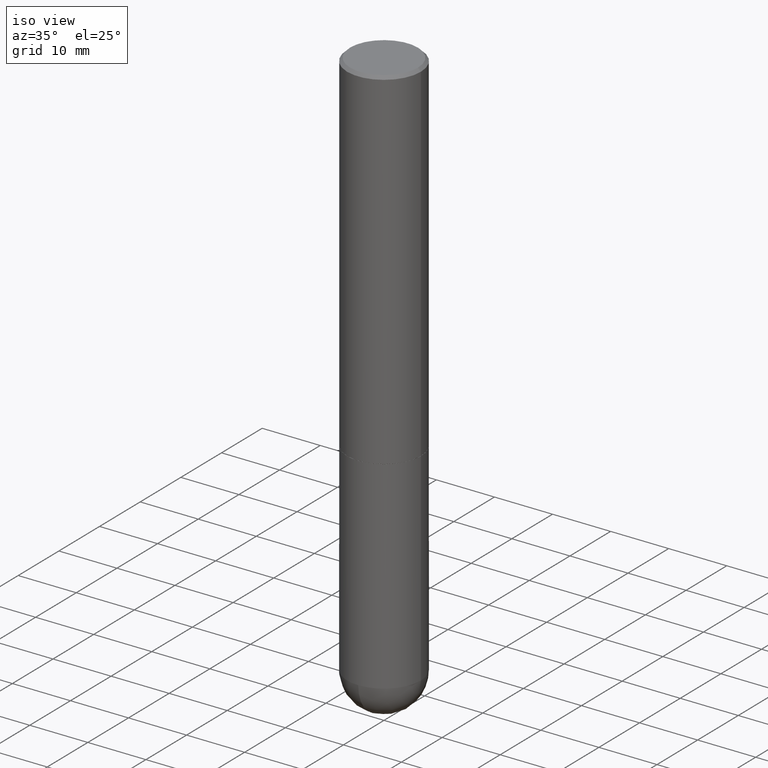
[diagram: clean part render]
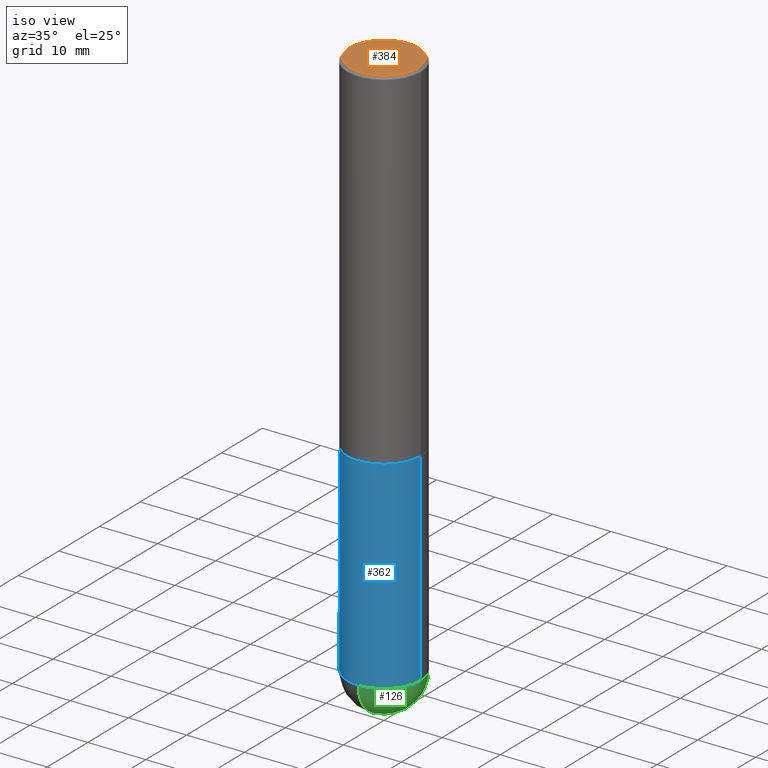
[diagram: same view with three faces highlighted in distinct colors, each labeled with its STEP entity id]
A machine part, iso view with three faces highlighted in distinct colors.
Their STEP definitions:

[orange] entity #384 — the highlighted planar face has unit normal (0, -0, -1).
#37 = VERTEX_POINT ( 'NONE', #149 ) ;
#56 = CIRCLE ( 'NONE', #141, 0.2300000000000001488 ) ;
#93 = DIRECTION ( 'NONE',  ( 1.000000000000000000, -6.982962677686265922E-15, 4.879110437680772635E-29 ) ) ;
#133 = PLANE ( 'NONE',  #295 ) ;
#141 = AXIS2_PLACEMENT_3D ( 'NONE', #220, #281, #325 ) ;
#149 = CARTESIAN_POINT ( 'NONE',  ( 0.2300000000000001488, -1.681434332853599997E-15, -1.365923996832016731E-16 ) ) ;
#189 = FACE_OUTER_BOUND ( 'NONE', #328, .T. ) ;
#197 = ORIENTED_EDGE ( 'NONE', *, *, #368, .T. ) ;
#220 = CARTESIAN_POINT ( 'NONE',  ( 3.340324525872703422E-45, -4.769098145217431040E-31, -1.365923996832131609E-16 ) ) ;
#269 = EDGE_CURVE ( 'NONE', #37, #352, #400, .T. ) ;
#281 = DIRECTION ( 'NONE',  ( -2.445468806185136597E-29, 3.491481338843145583E-15, 1.000000000000000000 ) ) ;
#295 = AXIS2_PLACEMENT_3D ( 'NONE', #350, #390, #392 ) ;
#309 = DIRECTION ( 'NONE',  ( -2.445468806185136597E-29, 3.491481338843145583E-15, 1.000000000000000000 ) ) ;
#317 = CARTESIAN_POINT ( 'NONE',  ( -0.2300000000000001488, 1.640996229256272716E-15, -1.365923996832245008E-16 ) ) ;
#325 = DIRECTION ( 'NONE',  ( 1.000000000000000000, -6.982962677686265922E-15, 4.879110437680772635E-29 ) ) ;
#328 = EDGE_LOOP ( 'NONE', ( #197, #351 ) ) ;
#350 = CARTESIAN_POINT ( 'NONE',  ( 1.606081415867842251E-15, 0.2300000000000001488, -8.713369077755306147E-16 ) ) ;
#351 = ORIENTED_EDGE ( 'NONE', *, *, #269, .T. ) ;
#352 = VERTEX_POINT ( 'NONE', #317 ) ;
#368 = EDGE_CURVE ( 'NONE', #352, #37, #56, .T. ) ;
#371 = AXIS2_PLACEMENT_3D ( 'NONE', #372, #309, #93 ) ;
#372 = CARTESIAN_POINT ( 'NONE',  ( 3.340324525872703422E-45, -4.769098145217431040E-31, -1.365923996832131609E-16 ) ) ;
#384 = ADVANCED_FACE ( 'NONE', ( #189 ), #133, .F. ) ;
#390 = DIRECTION ( 'NONE',  ( 2.438088387897960049E-29, -3.491481338843145188E-15, -1.000000000000000000 ) ) ;
#392 = DIRECTION ( 'NONE',  ( -1.000000000000000000, 6.982962677686265922E-15, -4.876176775795935793E-29 ) ) ;
#400 = CIRCLE ( 'NONE', #371, 0.2300000000000001488 ) ;

[blue] entity #362 — the highlighted cylindrical surface (partial cylindrical patch) has radius 6.35 mm, axis along (-0, 0, 1).
#2 = AXIS2_PLACEMENT_3D ( 'NONE', #9, #136, #245 ) ;
#7 = ORIENTED_EDGE ( 'NONE', *, *, #289, .T. ) ;
#9 = CARTESIAN_POINT ( 'NONE',  ( 9.170508023194262238E-29, -1.309305502066179741E-14, -3.750000000000000000 ) ) ;
#16 = VERTEX_POINT ( 'NONE', #84 ) ;
#22 = AXIS2_PLACEMENT_3D ( 'NONE', #358, #287, #138 ) ;
#24 = CARTESIAN_POINT ( 'NONE',  ( -0.2500000000000000000, -8.916304760806885668E-15, -3.750000000000000000 ) ) ;
#28 = DIRECTION ( 'NONE',  ( -2.445468806185136597E-29, 3.491481338843145583E-15, 1.000000000000000000 ) ) ;
#32 = DIRECTION ( 'NONE',  ( -2.445468806185136877E-29, 3.491481338843145188E-15, 1.000000000000000000 ) ) ;
#36 = CARTESIAN_POINT ( 'NONE',  ( 0.2500000000000000000, -1.003800884917403837E-14, -2.375000000000000000 ) ) ;
#40 = ORIENTED_EDGE ( 'NONE', *, *, #341, .F. ) ;
#42 = CIRCLE ( 'NONE', #387, 0.2500000000000000000 ) ;
#43 = FACE_OUTER_BOUND ( 'NONE', #193, .T. ) ;
#61 = VECTOR ( 'NONE', #228, 39.37007874015748143 ) ;
#66 = LINE ( 'NONE', #404, #101 ) ;
#84 = CARTESIAN_POINT ( 'NONE',  ( -0.2500000000000000000, -8.916304760806884090E-15, -2.375000000000000000 ) ) ;
#92 = CARTESIAN_POINT ( 'NONE',  ( 0.2500000000000000000, -1.243840226962870281E-14, -3.750000000000000000 ) ) ;
#100 = ORIENTED_EDGE ( 'NONE', *, *, #115, .F. ) ;
#101 = VECTOR ( 'NONE', #32, 39.37007874015748143 ) ;
#104 = VERTEX_POINT ( 'NONE', #24 ) ;
#115 = EDGE_CURVE ( 'NONE', #16, #394, #256, .T. ) ;
#122 = EDGE_CURVE ( 'NONE', #258, #394, #338, .T. ) ;
#136 = DIRECTION ( 'NONE',  ( -2.445468806185136597E-29, 3.491481338843145583E-15, 1.000000000000000000 ) ) ;
#138 = DIRECTION ( 'NONE',  ( 1.000000000000000000, -6.982962677686266711E-15, 4.876176775795935793E-29 ) ) ;
#148 = DIRECTION ( 'NONE',  ( 1.000000000000000000, -6.982962677686270655E-15, 0.000000000000000000 ) ) ;
#193 = EDGE_LOOP ( 'NONE', ( #40, #7, #221, #225, #100 ) ) ;
#207 = CARTESIAN_POINT ( 'NONE',  ( 9.170508023194262238E-29, -1.309305502066179741E-14, -3.750000000000000000 ) ) ;
#221 = ORIENTED_EDGE ( 'NONE', *, *, #355, .T. ) ;
#225 = ORIENTED_EDGE ( 'NONE', *, *, #122, .T. ) ;
#227 = CARTESIAN_POINT ( 'NONE',  ( 5.807988414689699417E-29, -8.292268179752470118E-15, -2.375000000000000000 ) ) ;
#228 = DIRECTION ( 'NONE',  ( -2.445468806185136877E-29, 3.491481338843145188E-15, 1.000000000000000000 ) ) ;
#237 = CARTESIAN_POINT ( 'NONE',  ( -1.776356839400160732E-15, -0.2500000000000133782, -3.749999999999999112 ) ) ;
#245 = DIRECTION ( 'NONE',  ( 1.000000000000000000, -6.982962677686262766E-15, 0.000000000000000000 ) ) ;
#250 = CYLINDRICAL_SURFACE ( 'NONE', #22, 0.2500000000000000000 ) ;
#256 = CIRCLE ( 'NONE', #365, 0.2500000000000000000 ) ;
#258 = VERTEX_POINT ( 'NONE', #92 ) ;
#266 = CARTESIAN_POINT ( 'NONE',  ( 0.2500000000000000000, -1.745740669421566678E-15, 1.219044193948983948E-29 ) ) ;
#287 = DIRECTION ( 'NONE',  ( -2.445468806185136597E-29, 3.491481338843145583E-15, 1.000000000000000000 ) ) ;
#289 = EDGE_CURVE ( 'NONE', #104, #326, #42, .T. ) ;
#326 = VERTEX_POINT ( 'NONE', #237 ) ;
#338 = LINE ( 'NONE', #266, #61 ) ;
#341 = EDGE_CURVE ( 'NONE', #104, #16, #66, .T. ) ;
#355 = EDGE_CURVE ( 'NONE', #326, #258, #380, .T. ) ;
#358 = CARTESIAN_POINT ( 'NONE',  ( 0.000000000000000000, 0.000000000000000000, 0.000000000000000000 ) ) ;
#362 = ADVANCED_FACE ( 'NONE', ( #43 ), #250, .T. ) ;
#365 = AXIS2_PLACEMENT_3D ( 'NONE', #227, #398, #148 ) ;
#380 = CIRCLE ( 'NONE', #2, 0.2500000000000000000 ) ;
#383 = DIRECTION ( 'NONE',  ( 1.000000000000000000, -6.982962677686262766E-15, 0.000000000000000000 ) ) ;
#387 = AXIS2_PLACEMENT_3D ( 'NONE', #207, #28, #383 ) ;
#394 = VERTEX_POINT ( 'NONE', #36 ) ;
#398 = DIRECTION ( 'NONE',  ( -2.445468806185136597E-29, 3.491481338843145583E-15, 1.000000000000000000 ) ) ;
#404 = CARTESIAN_POINT ( 'NONE',  ( -0.2500000000000000000, 1.776356839400250465E-15, -1.229733772563726445E-29 ) ) ;

[green] entity #126 — the highlighted spherical surface has radius 6.35 mm.
#2 = AXIS2_PLACEMENT_3D ( 'NONE', #9, #136, #245 ) ;
#9 = CARTESIAN_POINT ( 'NONE',  ( 9.170508023194262238E-29, -1.309305502066179741E-14, -3.750000000000000000 ) ) ;
#23 = DIRECTION ( 'NONE',  ( 1.000000000000000000, -6.982962677686262766E-15, 0.000000000000000000 ) ) ;
#31 = EDGE_CURVE ( 'NONE', #169, #326, #262, .T. ) ;
#52 = DIRECTION ( 'NONE',  ( 6.982962677686265922E-15, 1.000000000000000000, -4.370956789862818783E-15 ) ) ;
#79 = ORIENTED_EDGE ( 'NONE', *, *, #275, .T. ) ;
#92 = CARTESIAN_POINT ( 'NONE',  ( 0.2500000000000000000, -1.243840226962870281E-14, -3.750000000000000000 ) ) ;
#96 = AXIS2_PLACEMENT_3D ( 'NONE', #296, #396, #144 ) ;
#103 = EDGE_CURVE ( 'NONE', #258, #199, #118, .T. ) ;
#116 = SPHERICAL_SURFACE ( 'NONE', #234, 0.2500000000000001110 ) ;
#118 = CIRCLE ( 'NONE', #286, 0.2500000000000000000 ) ;
#126 = ADVANCED_FACE ( 'NONE', ( #403 ), #116, .T. ) ;
#136 = DIRECTION ( 'NONE',  ( -2.445468806185136597E-29, 3.491481338843145583E-15, 1.000000000000000000 ) ) ;
#144 = DIRECTION ( 'NONE',  ( -7.105427357601001859E-15, -1.000000000000000000, 0.000000000000000000 ) ) ;
#162 = CIRCLE ( 'NONE', #210, 0.2500000000000001110 ) ;
#169 = VERTEX_POINT ( 'NONE', #235 ) ;
#199 = VERTEX_POINT ( 'NONE', #244 ) ;
#206 = CARTESIAN_POINT ( 'NONE',  ( 9.170508023194262238E-29, -1.309305502066179741E-14, -3.750000000000000000 ) ) ;
#210 = AXIS2_PLACEMENT_3D ( 'NONE', #312, #238, #240 ) ;
#234 = AXIS2_PLACEMENT_3D ( 'NONE', #363, #333, #52 ) ;
#235 = CARTESIAN_POINT ( 'NONE',  ( 9.461445025441403338E-29, -1.442479963852329389E-14, -4.000000000000000888 ) ) ;
#237 = CARTESIAN_POINT ( 'NONE',  ( -1.776356839400160732E-15, -0.2500000000000133782, -3.749999999999999112 ) ) ;
#238 = DIRECTION ( 'NONE',  ( 1.000000000000000000, -6.982962677686265922E-15, 4.883557194083112340E-29 ) ) ;
#240 = DIRECTION ( 'NONE',  ( 6.982962677686266711E-15, 1.000000000000000000, 0.000000000000000000 ) ) ;
#244 = CARTESIAN_POINT ( 'NONE',  ( 1.745740669421657002E-15, 0.2499999999999867606, -3.750000000000001332 ) ) ;
#245 = DIRECTION ( 'NONE',  ( 1.000000000000000000, -6.982962677686262766E-15, 0.000000000000000000 ) ) ;
#251 = ORIENTED_EDGE ( 'NONE', *, *, #31, .F. ) ;
#258 = VERTEX_POINT ( 'NONE', #92 ) ;
#262 = CIRCLE ( 'NONE', #96, 0.2500000000000001110 ) ;
#275 = EDGE_CURVE ( 'NONE', #169, #199, #162, .T. ) ;
#286 = AXIS2_PLACEMENT_3D ( 'NONE', #206, #369, #23 ) ;
#296 = CARTESIAN_POINT ( 'NONE',  ( 8.839388245280375991E-29, -1.356723738880184771E-14, -3.750000000000000000 ) ) ;
#312 = CARTESIAN_POINT ( 'NONE',  ( 8.839388245280375991E-29, -1.356723738880184771E-14, -3.750000000000000000 ) ) ;
#321 = EDGE_LOOP ( 'NONE', ( #251, #79, #389, #354 ) ) ;
#326 = VERTEX_POINT ( 'NONE', #237 ) ;
#333 = DIRECTION ( 'NONE',  ( -1.000000000000000000, 6.982962677686265922E-15, -4.883557194083113462E-29 ) ) ;
#354 = ORIENTED_EDGE ( 'NONE', *, *, #355, .F. ) ;
#355 = EDGE_CURVE ( 'NONE', #326, #258, #380, .T. ) ;
#363 = CARTESIAN_POINT ( 'NONE',  ( 8.839388245280375991E-29, -1.356723738880184771E-14, -3.750000000000000000 ) ) ;
#369 = DIRECTION ( 'NONE',  ( -2.445468806185136597E-29, 3.491481338843145583E-15, 1.000000000000000000 ) ) ;
#380 = CIRCLE ( 'NONE', #2, 0.2500000000000000000 ) ;
#389 = ORIENTED_EDGE ( 'NONE', *, *, #103, .F. ) ;
#396 = DIRECTION ( 'NONE',  ( -1.000000000000000000, 7.105427357601001070E-15, -4.926315508542082329E-29 ) ) ;
#403 = FACE_OUTER_BOUND ( 'NONE', #321, .T. ) ;